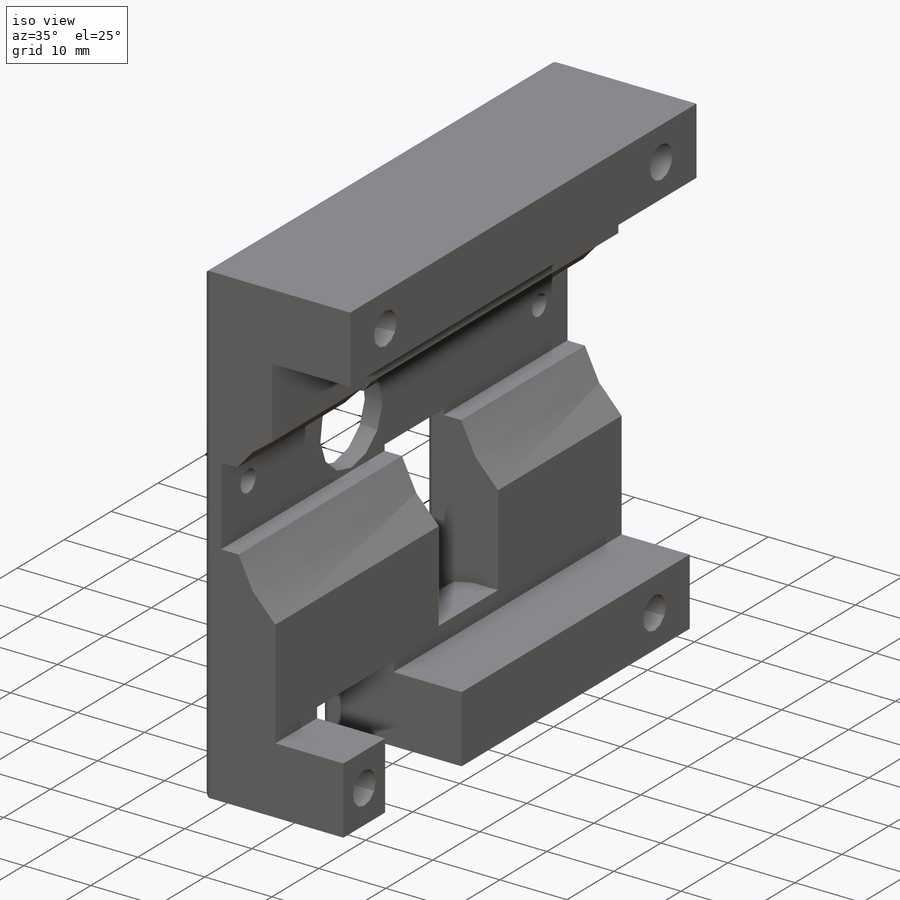
[diagram: iso view]
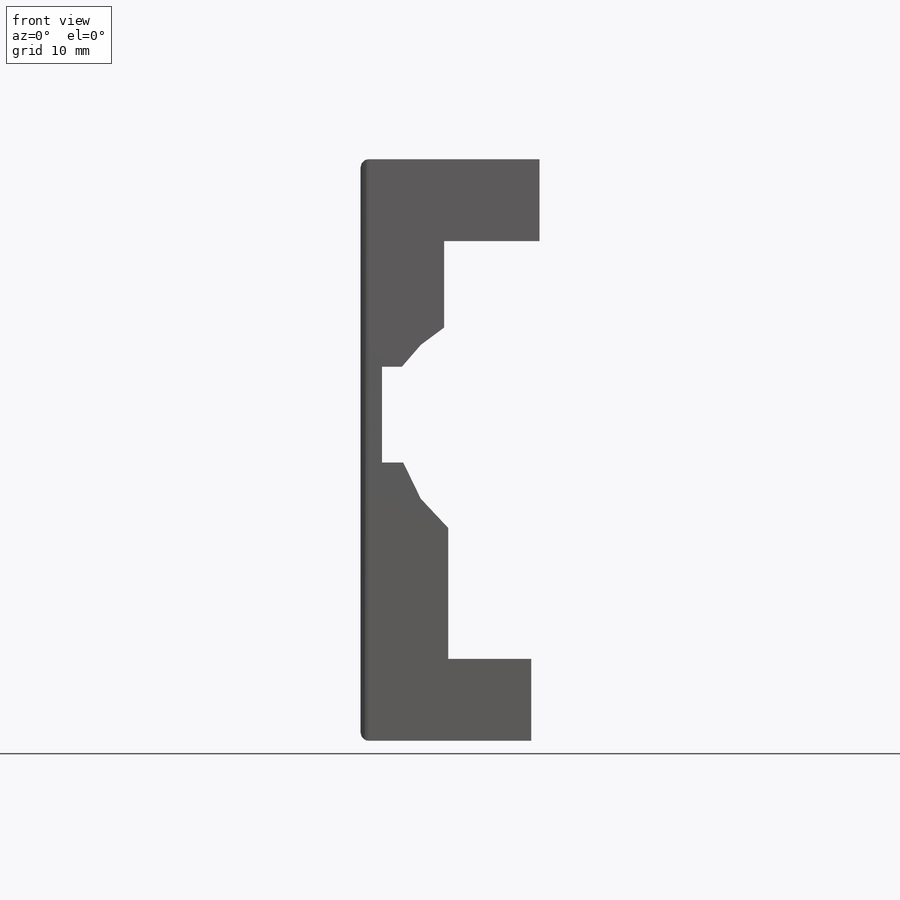
[diagram: front view]
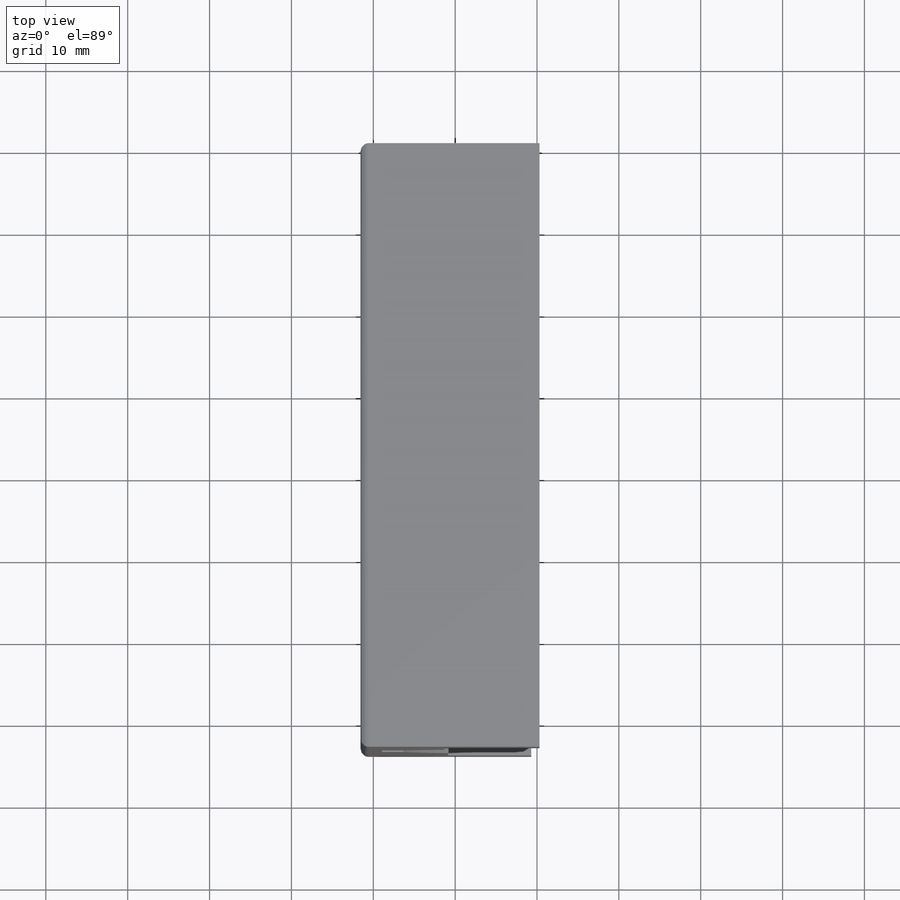
[diagram: top view]
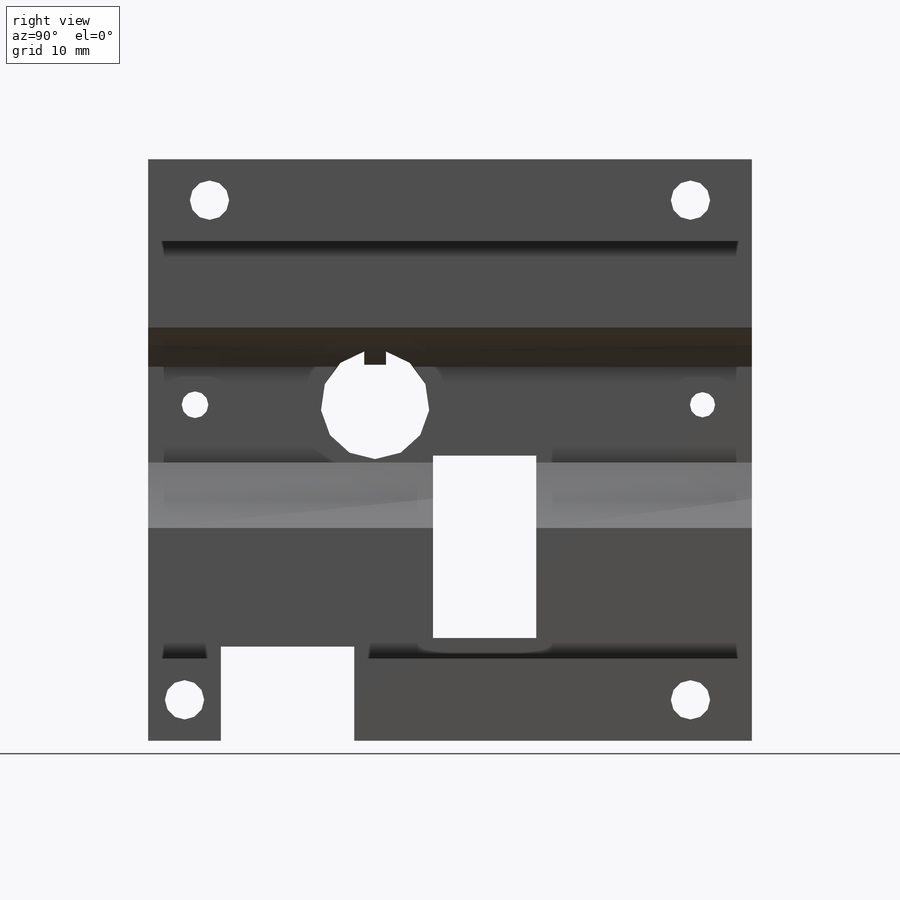
[diagram: right view]
SOLIDWORKS PART (.sldprt)
format: sldprt  version: not decoded by parser v0  size: 379,392 bytes
history: native  units: mm
features: sketch x6, cut_extrude x5, fillet x2, material x1, extrude x1 (+13 scaffold rows collapsed)
feature tree (28):
  scaffold x13  (default folders/planes/origin — collapsed)
  material  "Material <not specified>"
  sketch  "Profile"  dims[c1.D15=16.261mm c1.D16=16.261mm c1.D1=~21.588604mm c1.D2=~5.887801mm c2.D1=~71.089748mm c2.D2=~23.115071mm c3.D1=71.04mm c3.D2=21.86mm c3.D3=10.0mm c3.D4=10.0mm c3.D5=20.86mm c3.D6=10.15mm c3.D7=11.65mm c3.D8=~10.56175mm c3.D9=~15.99813mm c3.D10=2.588mm c3.D11=11.7mm c3.D12=~2.41908mm c3.D13=5.492mm c3.D14=23.99mm]
  extrude  "ProfileExtrude"  Depth=73.76mm
  sketch  "HoseWindow"  dims[c1.D1=~8.428655mm c1.D2=~10.636832mm c2.D1=16.29mm c2.D2=11.5mm c2.D3=8.89mm]
  cut_extrude  "HoseWindowCut"  [1 undecoded]
  sketch  "CageScrews"  dims[D1=4.8mm D2=5.0mm D3=7.5mm D4=7.5mm D5=5.0mm D6=5.0mm D7=4.45mm D8=5.0mm D9=7.5mm]
  cut_extrude  "CageScrewsCut"  [1 undecoded]
  sketch  "AxleHole"  dims[c1.D1=13.278mm c1.D2=1.331mm c1.D3=1.619mm c1.D4=1.619mm c1.D5=46.03mm c1.D6=41.05mm c2.D5=46.03mm c2.D7=13.278mm]
  cut_extrude  "AxleHoleCut"  [1 undecoded]
  sketch  "SetScrewHoles"  dims[D1=22.0mm D2=40.0mm]
  cut_extrude  "SetScrewHolesCut"  [1 undecoded]
  sketch  "VelocityWindow"  dims[c1.D1=~17.229493mm c1.D2=~13.624033mm c2.D1=12.61mm c2.D2=22.29mm c2.D3=34.8mm c2.D4=12.55mm]
  cut_extrude  "VelocityWindowCut"  [1 undecoded]
  fillet  "Fillet2"  Radius=1mm
  fillet  "Fillet3"  Radius=7mm
decode coverage: 9 of 14 modeling features carry decoded parameters
note: ~ marks probable driven/reference dimensions
note: 5 parameter values undecoded
summary: no parameter record found for 5 features
note: suppression state not decoded; provenance and decode notes live in map.json
